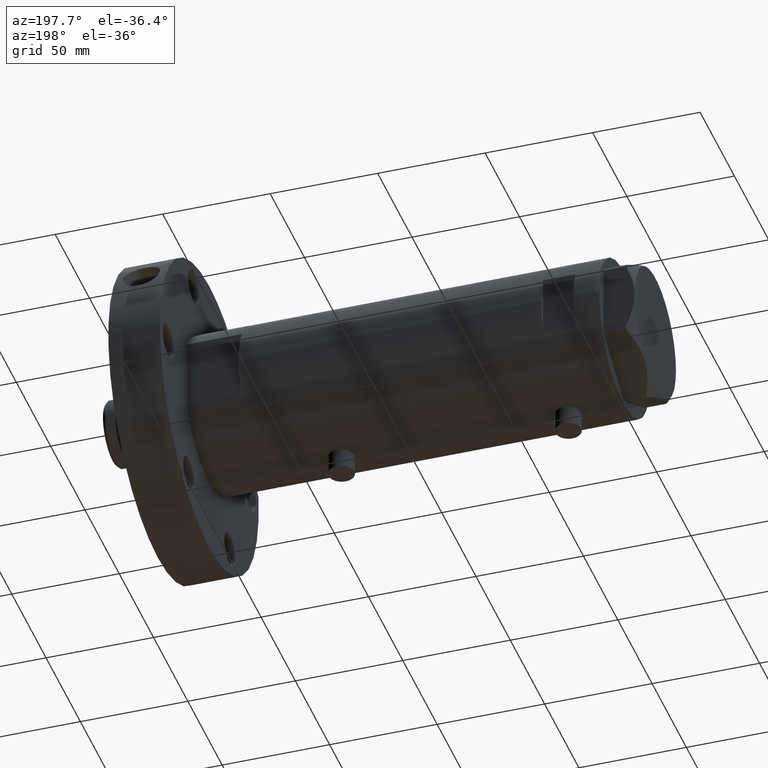
[diagram: clean part render]
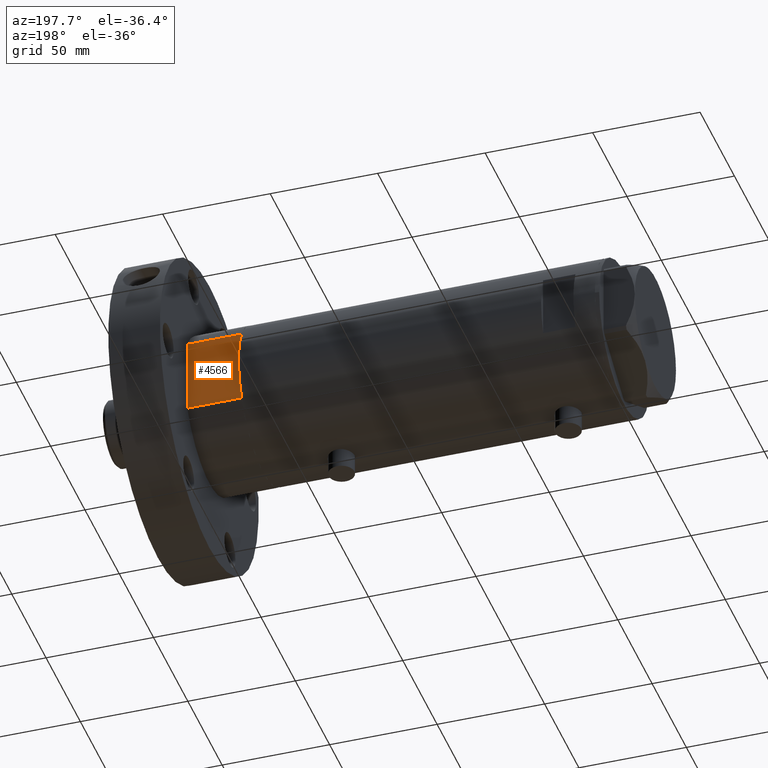
[diagram: same view with one face highlighted and labeled with its STEP entity id]
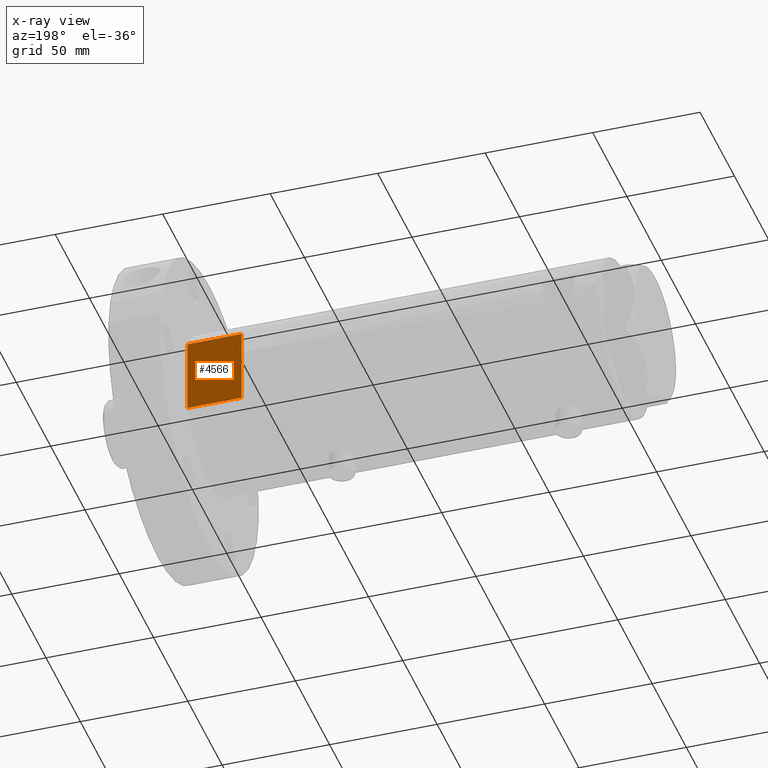
[diagram: x-ray of the same camera — body ghosted, the highlighted face saturated]
A machine part, auxiliary view. The second image highlights one B-rep face of the part: STEP entity #4566.
The next image is the same camera in x-ray: the body ghosted, the highlighted face saturated — about 0% of this face is hidden behind the body in this view.
In plain terms, the highlighted planar face has unit normal (0, -1, -0).
Its self-contained STEP definition (entity closure, byte-faithful):
#43 = CARTESIAN_POINT ( 'NONE',  ( 0.000000000000000000, 32.00000000000000000, 0.000000000000000000 ) ) ;
#117 = CARTESIAN_POINT ( 'NONE',  ( -17.55704986607943141, 32.00000000000000000, 0.000000000000000000 ) ) ;
#191 = VERTEX_POINT ( 'NONE', #193 ) ;
#193 = CARTESIAN_POINT ( 'NONE',  ( 17.55704986607943496, 32.00000000000000000, 0.000000000000000000 ) ) ;
#243 = EDGE_CURVE ( 'NONE', #2687, #3632, #999, .T. ) ;
#514 = VECTOR ( 'NONE', #3438, 1000.000000000000000 ) ;
#539 = VERTEX_POINT ( 'NONE', #2224 ) ;
#565 = CARTESIAN_POINT ( 'NONE',  ( -17.55704986607943141, 32.00000000000000000, 0.000000000000000000 ) ) ;
#625 = LINE ( 'NONE', #2228, #514 ) ;
#838 = CARTESIAN_POINT ( 'NONE',  ( -17.55704986607943141, 32.00000000000000000, 0.000000000000000000 ) ) ;
#999 = LINE ( 'NONE', #565, #4878 ) ;
#1091 = VERTEX_POINT ( 'NONE', #43 ) ;
#1323 = DIRECTION ( 'NONE',  ( 1.000000000000000000, 0.000000000000000000, 0.000000000000000000 ) ) ;
#1331 = FACE_OUTER_BOUND ( 'NONE', #4957, .T. ) ;
#1791 = DIRECTION ( 'NONE',  ( 0.000000000000000000, -1.000000000000000000, 0.000000000000000000 ) ) ;
#1985 = EDGE_CURVE ( 'NONE', #191, #539, #625, .T. ) ;
#2063 = EDGE_CURVE ( 'NONE', #3632, #539, #5078, .T. ) ;
#2224 = CARTESIAN_POINT ( 'NONE',  ( 17.55704986607943496, 32.00000000000000000, 25.19999999999999929 ) ) ;
#2228 = CARTESIAN_POINT ( 'NONE',  ( 17.55704986607943141, 32.00000000000000000, 0.000000000000000000 ) ) ;
#2234 = AXIS2_PLACEMENT_3D ( 'NONE', #838, #1791, #4659 ) ;
#2687 = VERTEX_POINT ( 'NONE', #3564 ) ;
#2791 = CARTESIAN_POINT ( 'NONE',  ( -17.55704986607943141, 32.00000000000000000, 25.19999999999999929 ) ) ;
#3133 = VECTOR ( 'NONE', #4187, 1000.000000000000000 ) ;
#3312 = EDGE_CURVE ( 'NONE', #2687, #1091, #5428, .T. ) ;
#3438 = DIRECTION ( 'NONE',  ( -0.000000000000000000, -0.000000000000000000, 1.000000000000000000 ) ) ;
#3564 = CARTESIAN_POINT ( 'NONE',  ( -17.55704986607943141, 32.00000000000000000, 0.000000000000000000 ) ) ;
#3615 = ORIENTED_EDGE ( 'NONE', *, *, #243, .T. ) ;
#3632 = VERTEX_POINT ( 'NONE', #5828 ) ;
#4030 = VECTOR ( 'NONE', #4475, 1000.000000000000000 ) ;
#4132 = PLANE ( 'NONE',  #2234 ) ;
#4187 = DIRECTION ( 'NONE',  ( 1.000000000000000000, 0.000000000000000000, 0.000000000000000000 ) ) ;
#4191 = VECTOR ( 'NONE', #1323, 1000.000000000000000 ) ;
#4346 = LINE ( 'NONE', #117, #4030 ) ;
#4455 = ORIENTED_EDGE ( 'NONE', *, *, #1985, .F. ) ;
#4475 = DIRECTION ( 'NONE',  ( 1.000000000000000000, 0.000000000000000000, 0.000000000000000000 ) ) ;
#4520 = ORIENTED_EDGE ( 'NONE', *, *, #3312, .F. ) ;
#4566 = ADVANCED_FACE ( 'NONE', ( #1331 ), #4132, .F. ) ;
#4659 = DIRECTION ( 'NONE',  ( 0.000000000000000000, -0.000000000000000000, -1.000000000000000000 ) ) ;
#4878 = VECTOR ( 'NONE', #4917, 1000.000000000000000 ) ;
#4917 = DIRECTION ( 'NONE',  ( -0.000000000000000000, -0.000000000000000000, 1.000000000000000000 ) ) ;
#4957 = EDGE_LOOP ( 'NONE', ( #5931, #4455, #5207, #4520, #3615 ) ) ;
#5078 = LINE ( 'NONE', #2791, #4191 ) ;
#5149 = CARTESIAN_POINT ( 'NONE',  ( -17.55704986607943141, 32.00000000000000000, 0.000000000000000000 ) ) ;
#5207 = ORIENTED_EDGE ( 'NONE', *, *, #5362, .F. ) ;
#5362 = EDGE_CURVE ( 'NONE', #1091, #191, #4346, .T. ) ;
#5428 = LINE ( 'NONE', #5149, #3133 ) ;
#5828 = CARTESIAN_POINT ( 'NONE',  ( -17.55704986607943496, 32.00000000000000000, 25.19999999999999929 ) ) ;
#5931 = ORIENTED_EDGE ( 'NONE', *, *, #2063, .T. ) ;